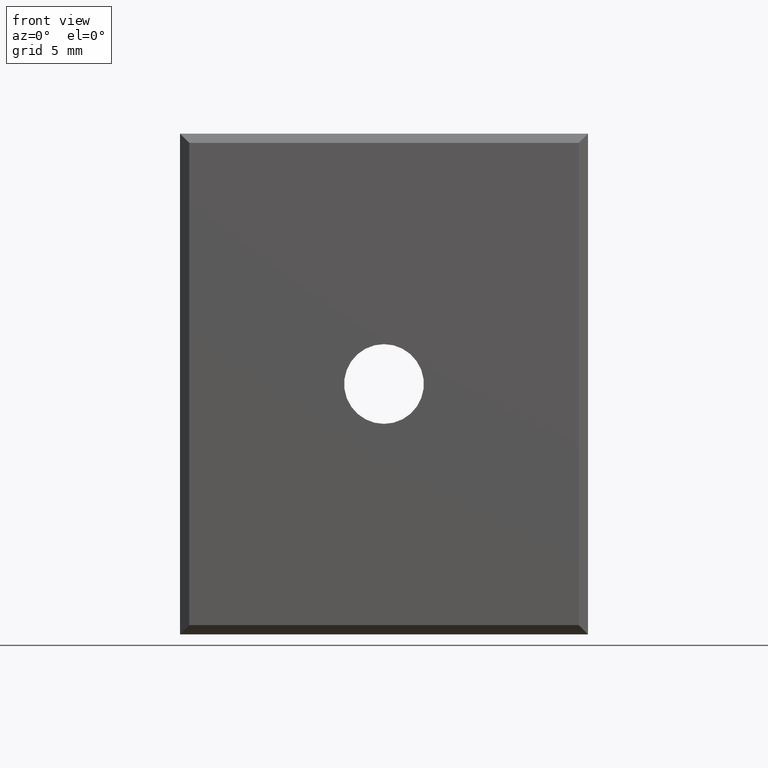
[diagram: clean part render]
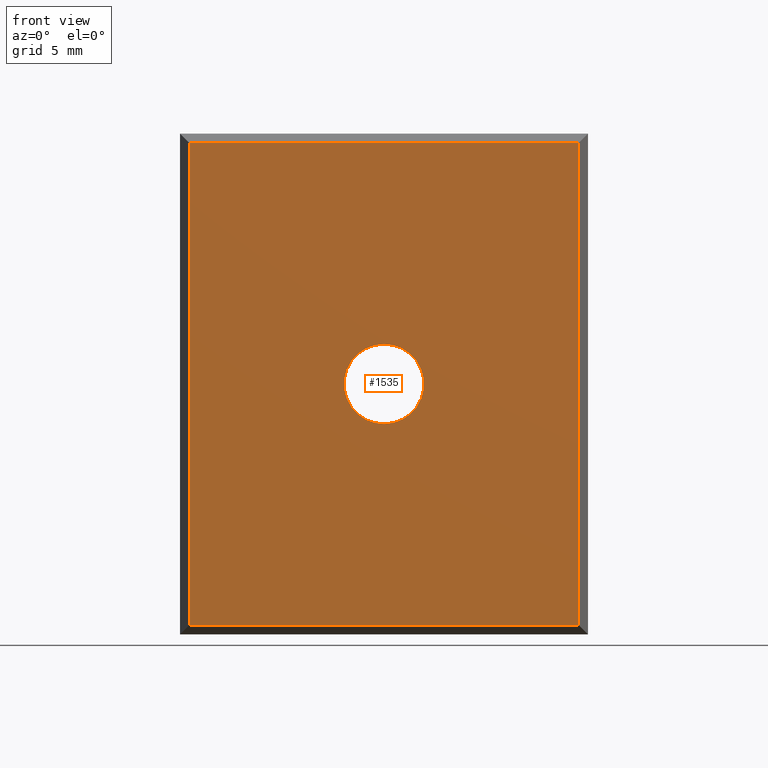
[diagram: same view with one face highlighted and labeled with its STEP entity id]
A machine part, front view. The second image highlights one B-rep face of the part: STEP entity #1535.
In plain terms, the highlighted planar face has unit normal (0, -1, 0).
Its self-contained STEP definition (entity closure, byte-faithful):
#65 = ORIENTED_EDGE ( 'NONE', *, *, #1359, .T. ) ;
#70 = ORIENTED_EDGE ( 'NONE', *, *, #1314, .T. ) ;
#88 = ORIENTED_EDGE ( 'NONE', *, *, #1338, .T. ) ;
#96 = ORIENTED_EDGE ( 'NONE', *, *, #1052, .T. ) ;
#105 = ORIENTED_EDGE ( 'NONE', *, *, #1295, .T. ) ;
#120 = ORIENTED_EDGE ( 'NONE', *, *, #1331, .T. ) ;
#471 = DIRECTION ( 'NONE',  ( 0.0000000000000000000, 1.000000000000000000, 0.0000000000000000000 ) ) ;
#472 = DIRECTION ( 'NONE',  ( 0.0000000000000000000, 0.0000000000000000000, 1.000000000000000000 ) ) ;
#509 = CARTESIAN_POINT ( 'NONE',  ( 10.99999999999999800, 0.0000000000000000000, -13.49999999999999600 ) ) ;
#1052 = EDGE_CURVE ( 'NONE', #2586, #2626, #3748, .T. ) ;
#1295 = EDGE_CURVE ( 'NONE', #2626, #2586, #4073, .T. ) ;
#1314 = EDGE_CURVE ( 'NONE', #3495, #3500, #5078, .T. ) ;
#1331 = EDGE_CURVE ( 'NONE', #3499, #3508, #5138, .T. ) ;
#1338 = EDGE_CURVE ( 'NONE', #3500, #3499, #5204, .T. ) ;
#1359 = EDGE_CURVE ( 'NONE', #3508, #3495, #5253, .T. ) ;
#1535 = ADVANCED_FACE ( 'NONE', ( #1743, #1753 ), #1763, .T. ) ;
#1743 = FACE_OUTER_BOUND ( 'NONE', #2922, .T. ) ;
#1750 = DIRECTION ( 'NONE',  ( 0.0000000000000000000, -1.000000000000000000, 0.0000000000000000000 ) ) ;
#1753 = FACE_BOUND ( 'NONE', #2950, .T. ) ;
#1763 = PLANE ( 'NONE',  #3646 ) ;
#1765 = CARTESIAN_POINT ( 'NONE',  ( 0.0000000000000000000, 0.0000000000000000000, -26.99999999999999600 ) ) ;
#1771 = DIRECTION ( 'NONE',  ( 0.0000000000000000000, -0.0000000000000000000, -1.000000000000000000 ) ) ;
#2240 = CARTESIAN_POINT ( 'NONE',  ( 10.99999999999999800, 0.0000000000000000000, -11.34999999999999600 ) ) ;
#2276 = CARTESIAN_POINT ( 'NONE',  ( 10.99999999999999800, 0.0000000000000000000, -15.64999999999999700 ) ) ;
#2425 = CARTESIAN_POINT ( 'NONE',  ( 21.50000000000000000, 9.035018104045934800E-017, -0.5000000000000043300 ) ) ;
#2445 = CARTESIAN_POINT ( 'NONE',  ( 21.50000000000000000, 2.293289365482261000E-015, -26.50000000000001100 ) ) ;
#2446 = CARTESIAN_POINT ( 'NONE',  ( 0.5000000000000038900, -1.807003620809173600E-017, -0.5000000000000038900 ) ) ;
#2467 = CARTESIAN_POINT ( 'NONE',  ( 0.5000000000000025500, 1.489956621885383200E-015, -26.50000000000001100 ) ) ;
#2586 = VERTEX_POINT ( 'NONE', #2276 ) ;
#2626 = VERTEX_POINT ( 'NONE', #2240 ) ;
#2922 = EDGE_LOOP ( 'NONE', ( #88, #120, #65, #70 ) ) ;
#2950 = EDGE_LOOP ( 'NONE', ( #105, #96 ) ) ;
#3495 = VERTEX_POINT ( 'NONE', #2425 ) ;
#3499 = VERTEX_POINT ( 'NONE', #2467 ) ;
#3500 = VERTEX_POINT ( 'NONE', #2446 ) ;
#3508 = VERTEX_POINT ( 'NONE', #2445 ) ;
#3646 = AXIS2_PLACEMENT_3D ( 'NONE', #1765, #1750, #1771 ) ;
#3748 = CIRCLE ( 'NONE', #3777, 2.150000000000000800 ) ;
#3777 = AXIS2_PLACEMENT_3D ( 'NONE', #509, #471, #472 ) ;
#4058 = AXIS2_PLACEMENT_3D ( 'NONE', #5049, #5075, #5029 ) ;
#4073 = CIRCLE ( 'NONE', #4058, 2.150000000000000800 ) ;
#4108 = VECTOR ( 'NONE', #5175, 1000.000000000000000 ) ;
#4115 = VECTOR ( 'NONE', #5145, 1000.000000000000000 ) ;
#4148 = VECTOR ( 'NONE', #5227, 1000.000000000000000 ) ;
#4166 = VECTOR ( 'NONE', #5118, 1000.000000000000000 ) ;
#5029 = DIRECTION ( 'NONE',  ( 0.0000000000000000000, 0.0000000000000000000, 1.000000000000000000 ) ) ;
#5049 = CARTESIAN_POINT ( 'NONE',  ( 10.99999999999999800, 0.0000000000000000000, -13.49999999999999600 ) ) ;
#5075 = DIRECTION ( 'NONE',  ( 0.0000000000000000000, 1.000000000000000000, 0.0000000000000000000 ) ) ;
#5078 = LINE ( 'NONE', #5113, #4166 ) ;
#5113 = CARTESIAN_POINT ( 'NONE',  ( 0.0000000000000000000, 0.0000000000000000000, -0.5000000000000038900 ) ) ;
#5118 = DIRECTION ( 'NONE',  ( -1.000000000000000000, -0.0000000000000000000, -0.0000000000000000000 ) ) ;
#5138 = LINE ( 'NONE', #5164, #4115 ) ;
#5145 = DIRECTION ( 'NONE',  ( 1.000000000000000000, 0.0000000000000000000, 0.0000000000000000000 ) ) ;
#5164 = CARTESIAN_POINT ( 'NONE',  ( 0.0000000000000000000, 0.0000000000000000000, -26.49999999999999600 ) ) ;
#5175 = DIRECTION ( 'NONE',  ( 0.0000000000000000000, -0.0000000000000000000, -1.000000000000000000 ) ) ;
#5176 = CARTESIAN_POINT ( 'NONE',  ( 0.5000000000000038900, 0.0000000000000000000, -26.99999999999999600 ) ) ;
#5204 = LINE ( 'NONE', #5176, #4108 ) ;
#5219 = CARTESIAN_POINT ( 'NONE',  ( 21.50000000000000000, 0.0000000000000000000, -26.99999999999999600 ) ) ;
#5227 = DIRECTION ( 'NONE',  ( -0.0000000000000000000, 0.0000000000000000000, 1.000000000000000000 ) ) ;
#5253 = LINE ( 'NONE', #5219, #4148 ) ;